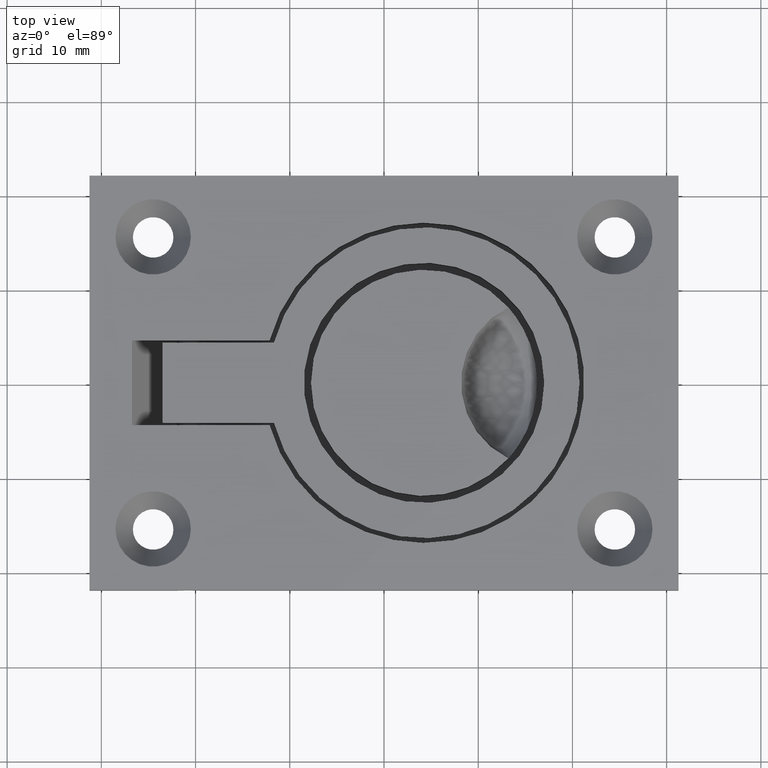
[diagram: clean part render]
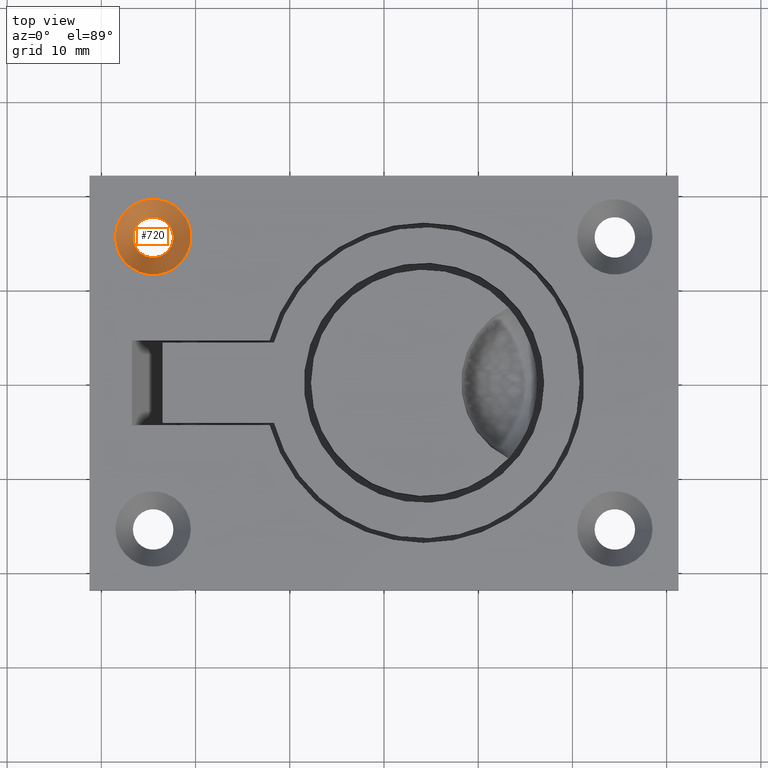
[diagram: same view with one face highlighted and labeled with its STEP entity id]
A machine part, top view. The second image highlights one B-rep face of the part: STEP entity #720.
In plain terms, the highlighted conical surface has half-angle 30 deg.
Its self-contained STEP definition (entity closure, byte-faithful):
#31=FACE_BOUND('',#142,.T.);
#55=CONICAL_SURFACE('',#777,3.075,30.);
#91=FACE_OUTER_BOUND('',#141,.T.);
#141=EDGE_LOOP('',(#525));
#142=EDGE_LOOP('',(#526));
#213=CIRCLE('',#778,4.);
#214=CIRCLE('',#779,2.15);
#357=VERTEX_POINT('',#1107);
#358=VERTEX_POINT('',#1109);
#427=EDGE_CURVE('',#357,#357,#213,.T.);
#428=EDGE_CURVE('',#358,#358,#214,.T.);
#525=ORIENTED_EDGE('',*,*,#427,.F.);
#526=ORIENTED_EDGE('',*,*,#428,.F.);
#720=ADVANCED_FACE('',(#91,#31),#55,.F.);
#777=AXIS2_PLACEMENT_3D('',#1106,#881,#882);
#778=AXIS2_PLACEMENT_3D('',#1108,#883,#884);
#779=AXIS2_PLACEMENT_3D('',#1110,#885,#886);
#881=DIRECTION('center_axis',(0.,0.,1.));
#882=DIRECTION('ref_axis',(1.,0.,0.));
#883=DIRECTION('center_axis',(0.,0.,-1.));
#884=DIRECTION('ref_axis',(1.,0.,0.));
#885=DIRECTION('center_axis',(0.,0.,1.));
#886=DIRECTION('ref_axis',(1.,0.,0.));
#1106=CARTESIAN_POINT('Origin',(-24.5,15.5,1.89785300299879));
#1107=CARTESIAN_POINT('',(-20.5,15.5,3.5));
#1108=CARTESIAN_POINT('Origin',(-24.5,15.5,3.5));
#1109=CARTESIAN_POINT('',(-22.35,15.5,0.295706005997577));
#1110=CARTESIAN_POINT('Origin',(-24.5,15.5,0.295706005997584));